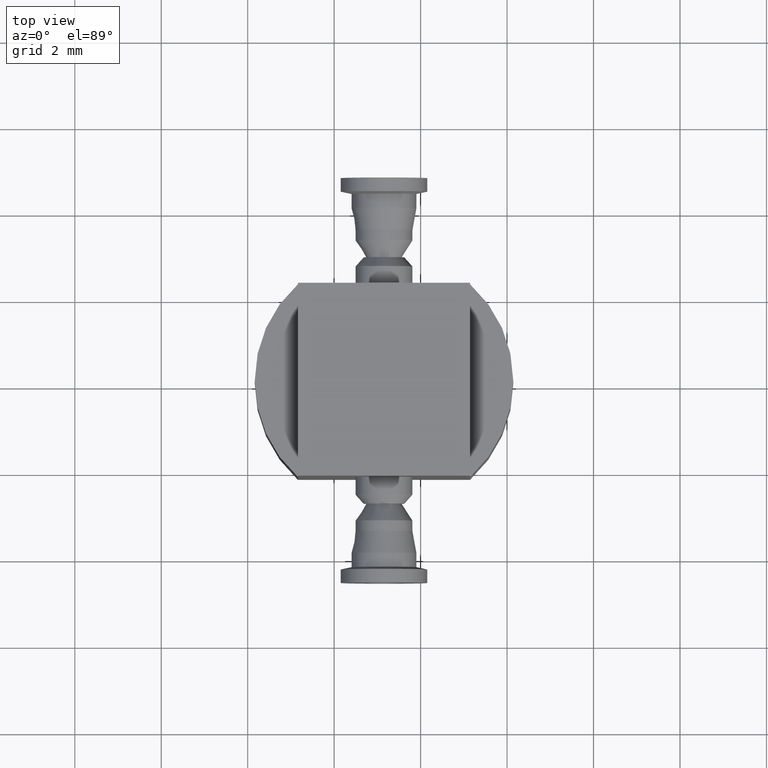
[diagram: clean part render]
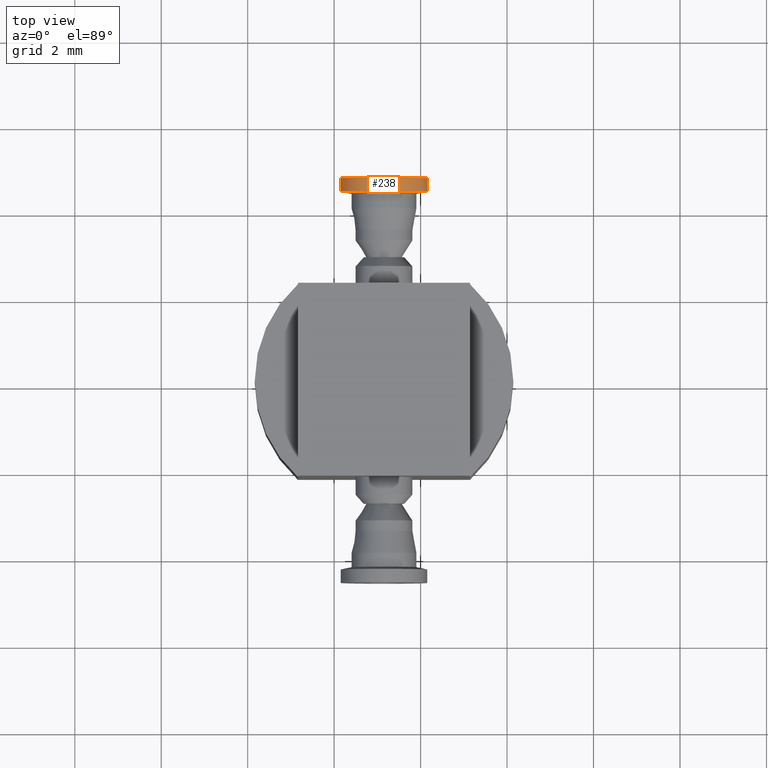
[diagram: same view with one face highlighted and labeled with its STEP entity id]
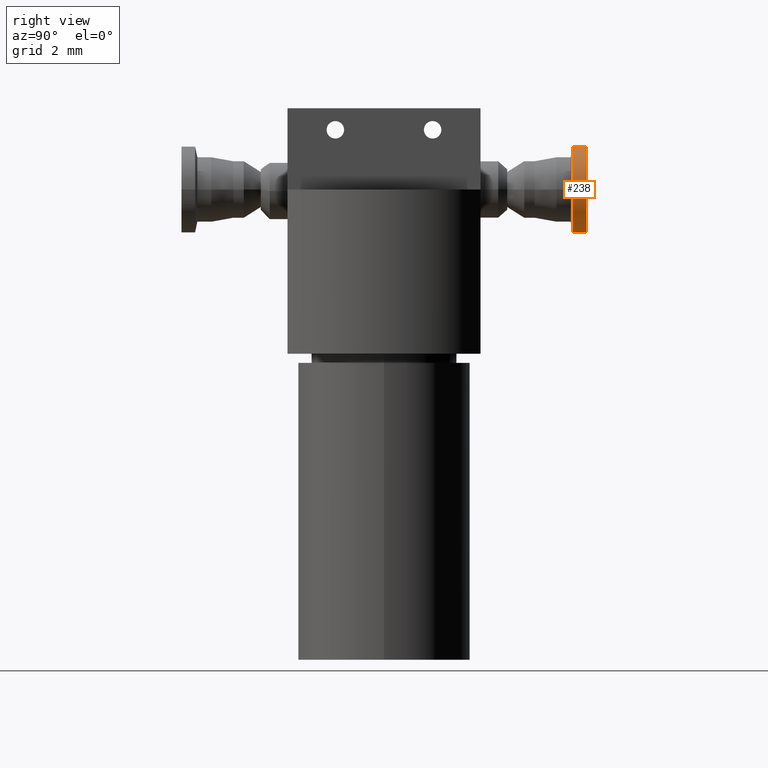
[diagram: same view with one face highlighted and labeled with its STEP entity id]
A machine part, top view. The second image highlights one B-rep face of the part: STEP entity #238.
A second angle (right view) of the same face is appended — the face is thin or edge-on in the first view.
In plain terms, the highlighted cylindrical surface (bore or boss wall) has radius 1 mm, axis along (0, -1, 0).
Its self-contained STEP definition (entity closure, byte-faithful):
#117 = PLANE('',#118);
#118 = AXIS2_PLACEMENT_3D('',#119,#120,#121);
#119 = CARTESIAN_POINT('',(3.153106860388,4.683261871338,11.578411163388
    ));
#120 = DIRECTION('',(0.,-1.,0.));
#121 = DIRECTION('',(0.,0.,-1.));
#165 = CONICAL_SURFACE('',#166,0.75,1.361476223841);
#166 = AXIS2_PLACEMENT_3D('',#167,#168,#169);
#167 = CARTESIAN_POINT('',(3.153106860388,4.317153930664,11.578411163388
    ));
#168 = DIRECTION('',(0.,1.,0.));
#169 = DIRECTION('',(1.,0.,0.));
#190 = VERTEX_POINT('',#191);
#191 = CARTESIAN_POINT('',(4.153106860388,4.370261871338,11.578411163388
    ));
#211 = EDGE_CURVE('',#190,#190,#212,.T.);
#212 = SURFACE_CURVE('',#213,(#218,#225),.PCURVE_S1.);
#213 = CIRCLE('',#214,1.);
#214 = AXIS2_PLACEMENT_3D('',#215,#216,#217);
#215 = CARTESIAN_POINT('',(3.153106860388,4.370261871338,11.578411163388
    ));
#216 = DIRECTION('',(-0.,1.,0.));
#217 = DIRECTION('',(1.,0.,0.));
#218 = PCURVE('',#165,#219);
#219 = DEFINITIONAL_REPRESENTATION('',(#220),#224);
#220 = LINE('',#221,#222);
#221 = CARTESIAN_POINT('',(0.,5.310794067383E-02));
#222 = VECTOR('',#223,1.);
#223 = DIRECTION('',(1.,0.));
#224 = ( GEOMETRIC_REPRESENTATION_CONTEXT(2) 
PARAMETRIC_REPRESENTATION_CONTEXT() REPRESENTATION_CONTEXT('2D SPACE',''
  ) );
#225 = PCURVE('',#226,#231);
#226 = CYLINDRICAL_SURFACE('',#227,1.);
#227 = AXIS2_PLACEMENT_3D('',#228,#229,#230);
#228 = CARTESIAN_POINT('',(3.153106860388,4.683261871338,11.578411163388
    ));
#229 = DIRECTION('',(0.,-1.,0.));
#230 = DIRECTION('',(1.,0.,0.));
#231 = DEFINITIONAL_REPRESENTATION('',(#232),#236);
#232 = LINE('',#233,#234);
#233 = CARTESIAN_POINT('',(6.28318530718,0.313));
#234 = VECTOR('',#235,1.);
#235 = DIRECTION('',(-1.,0.));
#236 = ( GEOMETRIC_REPRESENTATION_CONTEXT(2) 
PARAMETRIC_REPRESENTATION_CONTEXT() REPRESENTATION_CONTEXT('2D SPACE',''
  ) );
#238 = ADVANCED_FACE('',(#239),#226,.T.);
#239 = FACE_BOUND('',#240,.T.);
#240 = EDGE_LOOP('',(#241,#242,#264,#286));
#241 = ORIENTED_EDGE('',*,*,#211,.T.);
#242 = ORIENTED_EDGE('',*,*,#243,.F.);
#243 = EDGE_CURVE('',#244,#190,#246,.T.);
#244 = VERTEX_POINT('',#245);
#245 = CARTESIAN_POINT('',(4.153106860388,4.683261871338,11.578411163388
    ));
#246 = SEAM_CURVE('',#247,(#250,#257),.PCURVE_S1.);
#247 = B_SPLINE_CURVE_WITH_KNOTS('',1,(#248,#249),.UNSPECIFIED.,.F.,.F.,
  (2,2),(0.,0.313),.PIECEWISE_BEZIER_KNOTS.);
#248 = CARTESIAN_POINT('',(4.153106860388,4.683261871338,11.578411163388
    ));
#249 = CARTESIAN_POINT('',(4.153106860388,4.370261871338,11.578411163388
    ));
#250 = PCURVE('',#226,#251);
#251 = DEFINITIONAL_REPRESENTATION('',(#252),#256);
#252 = LINE('',#253,#254);
#253 = CARTESIAN_POINT('',(0.,0.));
#254 = VECTOR('',#255,1.);
#255 = DIRECTION('',(0.,1.));
#256 = ( GEOMETRIC_REPRESENTATION_CONTEXT(2) 
PARAMETRIC_REPRESENTATION_CONTEXT() REPRESENTATION_CONTEXT('2D SPACE',''
  ) );
#257 = PCURVE('',#226,#258);
#258 = DEFINITIONAL_REPRESENTATION('',(#259),#263);
#259 = LINE('',#260,#261);
#260 = CARTESIAN_POINT('',(6.28318530718,0.));
#261 = VECTOR('',#262,1.);
#262 = DIRECTION('',(0.,1.));
#263 = ( GEOMETRIC_REPRESENTATION_CONTEXT(2) 
PARAMETRIC_REPRESENTATION_CONTEXT() REPRESENTATION_CONTEXT('2D SPACE',''
  ) );
#264 = ORIENTED_EDGE('',*,*,#265,.T.);
#265 = EDGE_CURVE('',#244,#244,#266,.T.);
#266 = SURFACE_CURVE('',#267,(#272,#279),.PCURVE_S1.);
#267 = CIRCLE('',#268,1.);
#268 = AXIS2_PLACEMENT_3D('',#269,#270,#271);
#269 = CARTESIAN_POINT('',(3.153106860388,4.683261871338,11.578411163388
    ));
#270 = DIRECTION('',(0.,-1.,0.));
#271 = DIRECTION('',(1.,0.,0.));
#272 = PCURVE('',#226,#273);
#273 = DEFINITIONAL_REPRESENTATION('',(#274),#278);
#274 = LINE('',#275,#276);
#275 = CARTESIAN_POINT('',(0.,0.));
#276 = VECTOR('',#277,1.);
#277 = DIRECTION('',(1.,0.));
#278 = ( GEOMETRIC_REPRESENTATION_CONTEXT(2) 
PARAMETRIC_REPRESENTATION_CONTEXT() REPRESENTATION_CONTEXT('2D SPACE',''
  ) );
#279 = PCURVE('',#117,#280);
#280 = DEFINITIONAL_REPRESENTATION('',(#281),#285);
#281 = CIRCLE('',#282,1.);
#282 = AXIS2_PLACEMENT_2D('',#283,#284);
#283 = CARTESIAN_POINT('',(0.,0.));
#284 = DIRECTION('',(0.,1.));
#285 = ( GEOMETRIC_REPRESENTATION_CONTEXT(2) 
PARAMETRIC_REPRESENTATION_CONTEXT() REPRESENTATION_CONTEXT('2D SPACE',''
  ) );
#286 = ORIENTED_EDGE('',*,*,#243,.T.);